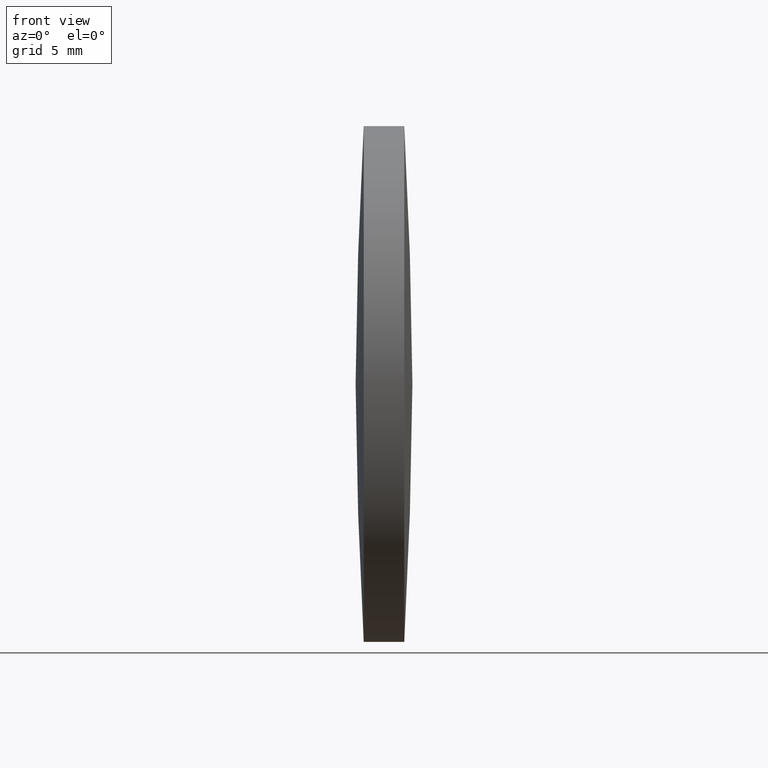
[diagram: clean part render]
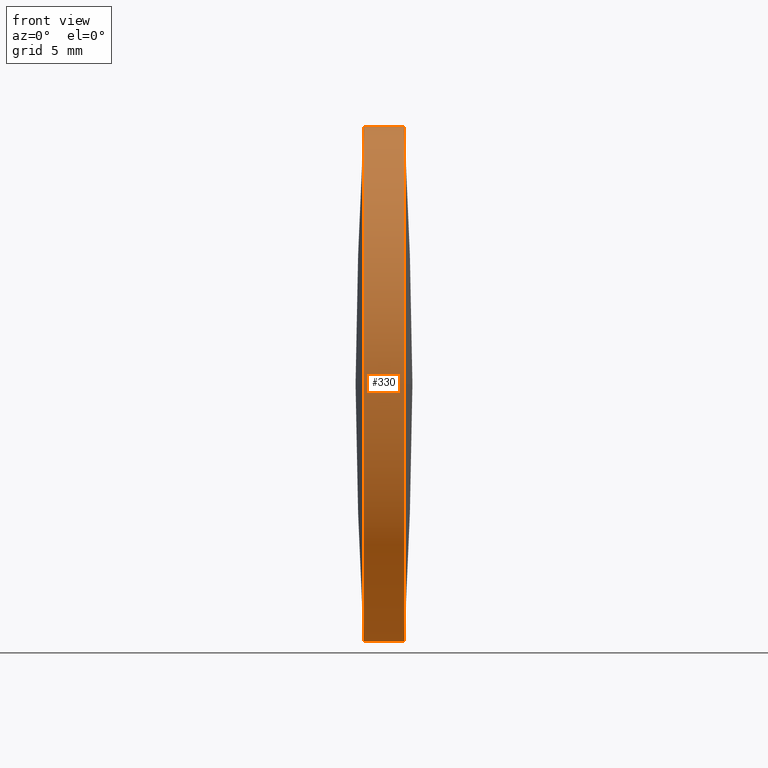
[diagram: same view with one face highlighted and labeled with its STEP entity id]
A machine part, front view. The second image highlights one B-rep face of the part: STEP entity #330.
In plain terms, the highlighted cylindrical surface (partial cylindrical patch) has radius 12.7 mm, axis along (-1, -0, -0).
Its self-contained STEP definition (entity closure, byte-faithful):
#2 = CARTESIAN_POINT ( 'NONE',  ( 85.45852234609111500, 48.61611302318478100, -12.69999999999999600 ) ) ;
#3 = DIRECTION ( 'NONE',  ( -1.000000000000000000, -0.0000000000000000000, -0.0000000000000000000 ) ) ;
#6 = CARTESIAN_POINT ( 'NONE',  ( 85.45852234609111500, 48.61611302318478100, 0.0000000000000000000 ) ) ;
#11 = EDGE_CURVE ( 'NONE', #73, #296, #157, .T. ) ;
#18 = EDGE_CURVE ( 'NONE', #253, #302, #282, .T. ) ;
#22 = ORIENTED_EDGE ( 'NONE', *, *, #11, .T. ) ;
#26 = CARTESIAN_POINT ( 'NONE',  ( 79.30540135083715800, 48.61611302318478100, 12.69999999999999600 ) ) ;
#32 = ORIENTED_EDGE ( 'NONE', *, *, #45, .T. ) ;
#36 = VERTEX_POINT ( 'NONE', #114 ) ;
#45 = EDGE_CURVE ( 'NONE', #296, #36, #274, .T. ) ;
#52 = VERTEX_POINT ( 'NONE', #2 ) ;
#56 = DIRECTION ( 'NONE',  ( -1.000000000000000000, -0.0000000000000000000, -0.0000000000000000000 ) ) ;
#59 = CARTESIAN_POINT ( 'NONE',  ( 87.45786520323396500, 48.61611302318478100, -12.69999999999999600 ) ) ;
#62 = CARTESIAN_POINT ( 'NONE',  ( 87.45786520323396500, 48.61611302318478100, 0.0000000000000000000 ) ) ;
#66 = DIRECTION ( 'NONE',  ( 0.0000000000000000000, 0.0000000000000000000, 1.000000000000000000 ) ) ;
#69 = LINE ( 'NONE', #94, #197 ) ;
#73 = VERTEX_POINT ( 'NONE', #59 ) ;
#81 = CARTESIAN_POINT ( 'NONE',  ( 85.45852234609111500, 48.61611302318478100, 12.69999999999999600 ) ) ;
#87 = DIRECTION ( 'NONE',  ( 0.0000000000000000000, 0.0000000000000000000, 1.000000000000000000 ) ) ;
#94 = CARTESIAN_POINT ( 'NONE',  ( 79.30540135083715800, 48.61611302318478100, -12.69999999999999600 ) ) ;
#102 = LINE ( 'NONE', #26, #278 ) ;
#103 = AXIS2_PLACEMENT_3D ( 'NONE', #6, #3, #212 ) ;
#106 = ORIENTED_EDGE ( 'NONE', *, *, #300, .F. ) ;
#107 = DIRECTION ( 'NONE',  ( -1.000000000000000000, -0.0000000000000000000, -0.0000000000000000000 ) ) ;
#114 = CARTESIAN_POINT ( 'NONE',  ( 87.45786520323396500, 48.61611302318478100, 12.69999999999999600 ) ) ;
#115 = DIRECTION ( 'NONE',  ( -1.000000000000000000, -0.0000000000000000000, -0.0000000000000000000 ) ) ;
#121 = CARTESIAN_POINT ( 'NONE',  ( 85.45852234609111500, 35.91611302318457900, -1.555301434917087000E-015 ) ) ;
#122 = DIRECTION ( 'NONE',  ( -1.000000000000000000, -0.0000000000000000000, -0.0000000000000000000 ) ) ;
#134 = DIRECTION ( 'NONE',  ( -1.000000000000000000, -0.0000000000000000000, -0.0000000000000000000 ) ) ;
#157 = CIRCLE ( 'NONE', #222, 12.69999999999999600 ) ;
#161 = DIRECTION ( 'NONE',  ( 0.0000000000000000000, 0.0000000000000000000, 1.000000000000000000 ) ) ;
#175 = ORIENTED_EDGE ( 'NONE', *, *, #18, .F. ) ;
#183 = CARTESIAN_POINT ( 'NONE',  ( 87.45786520323396500, 48.61611302318478100, 0.0000000000000000000 ) ) ;
#197 = VECTOR ( 'NONE', #134, 1000.000000000000000 ) ;
#203 = CIRCLE ( 'NONE', #281, 12.69999999999999600 ) ;
#212 = DIRECTION ( 'NONE',  ( 0.0000000000000000000, 0.0000000000000000000, 1.000000000000000000 ) ) ;
#219 = CYLINDRICAL_SURFACE ( 'NONE', #268, 12.69999999999999600 ) ;
#222 = AXIS2_PLACEMENT_3D ( 'NONE', #62, #319, #161 ) ;
#253 = VERTEX_POINT ( 'NONE', #121 ) ;
#257 = ORIENTED_EDGE ( 'NONE', *, *, #292, .T. ) ;
#268 = AXIS2_PLACEMENT_3D ( 'NONE', #344, #56, #342 ) ;
#272 = CARTESIAN_POINT ( 'NONE',  ( 85.45852234609111500, 48.61611302318478100, 0.0000000000000000000 ) ) ;
#273 = EDGE_CURVE ( 'NONE', #52, #253, #203, .T. ) ;
#274 = CIRCLE ( 'NONE', #325, 12.69999999999999600 ) ;
#278 = VECTOR ( 'NONE', #107, 1000.000000000000000 ) ;
#281 = AXIS2_PLACEMENT_3D ( 'NONE', #272, #122, #66 ) ;
#282 = CIRCLE ( 'NONE', #103, 12.69999999999999600 ) ;
#292 = EDGE_CURVE ( 'NONE', #36, #302, #102, .T. ) ;
#293 = ORIENTED_EDGE ( 'NONE', *, *, #273, .F. ) ;
#296 = VERTEX_POINT ( 'NONE', #312 ) ;
#300 = EDGE_CURVE ( 'NONE', #73, #52, #69, .T. ) ;
#302 = VERTEX_POINT ( 'NONE', #81 ) ;
#312 = CARTESIAN_POINT ( 'NONE',  ( 87.45786520323395100, 35.91611302318492000, 0.0000000000000000000 ) ) ;
#317 = EDGE_LOOP ( 'NONE', ( #106, #22, #32, #257, #175, #293 ) ) ;
#319 = DIRECTION ( 'NONE',  ( -1.000000000000000000, -0.0000000000000000000, -0.0000000000000000000 ) ) ;
#325 = AXIS2_PLACEMENT_3D ( 'NONE', #183, #115, #87 ) ;
#330 = ADVANCED_FACE ( 'NONE', ( #333 ), #219, .T. ) ;
#333 = FACE_OUTER_BOUND ( 'NONE', #317, .T. ) ;
#342 = DIRECTION ( 'NONE',  ( 0.0000000000000000000, 0.0000000000000000000, 1.000000000000000000 ) ) ;
#344 = CARTESIAN_POINT ( 'NONE',  ( 79.30540135083715800, 48.61611302318478100, 0.0000000000000000000 ) ) ;